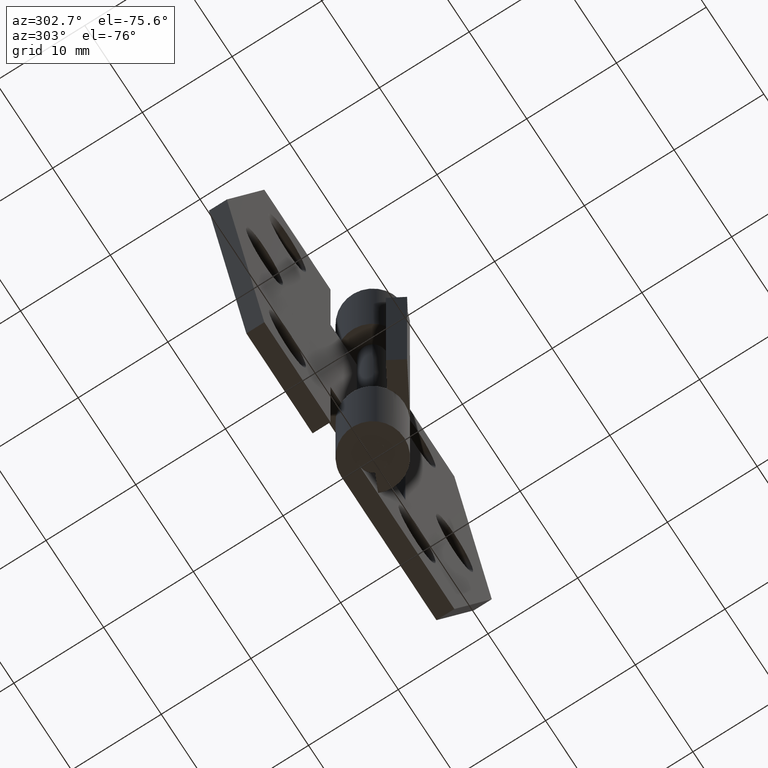
[diagram: clean part render]
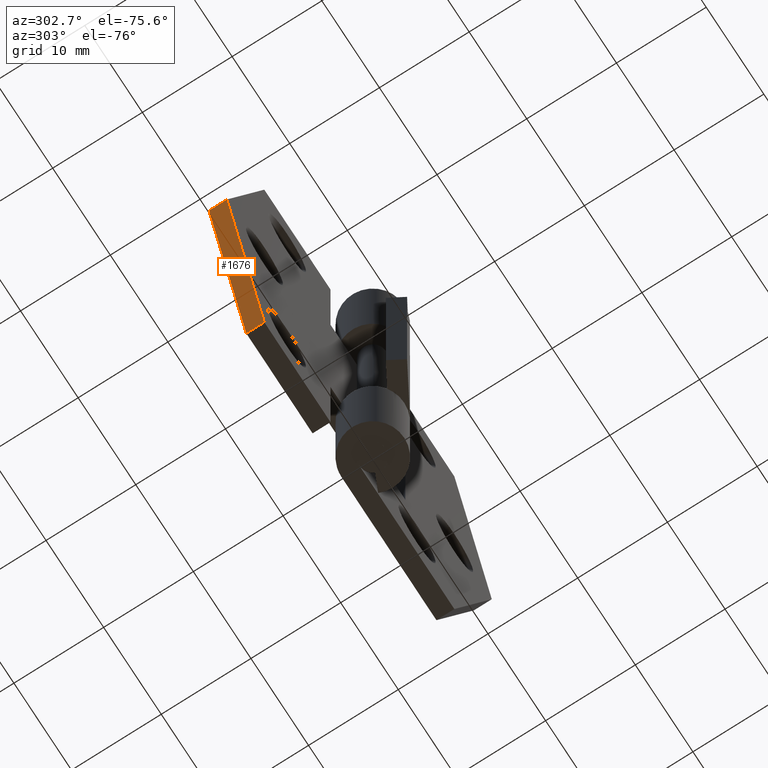
[diagram: same view with one face highlighted and labeled with its STEP entity id]
A machine part, auxiliary view. The second image highlights one B-rep face of the part: STEP entity #1676.
In plain terms, the highlighted face is a freeform B-spline surface patch.
Its self-contained STEP definition (entity closure, byte-faithful):
#1618=CARTESIAN_POINT('',(-16.500000000000000,3.499999999999950,0.0));
#1619=VERTEX_POINT('',#1618);
#1634=CARTESIAN_POINT('',(-16.500000000000000,1.499999999999946,0.0));
#1635=VERTEX_POINT('',#1634);
#1641=CARTESIAN_POINT('',(-16.500000000000000,1.499999999999946,0.0));
#1642=CARTESIAN_POINT('',(-16.500000000000000,3.499999999999950,0.0));
#1643=QUASI_UNIFORM_CURVE('',1,(#1641,#1642),.UNSPECIFIED.,.F.,.U.);
#1644=EDGE_CURVE('',#1635,#1619,#1643,.T.);
#1649=CARTESIAN_POINT('',(-23.324674987401739,1.400100003876334,26.248749951545150));
#1650=CARTESIAN_POINT('',(-16.175324838254689,1.400100003876334,-1.248750622097405));
#1651=CARTESIAN_POINT('',(-23.324674987401739,3.599900049767743,26.248749951545150));
#1652=CARTESIAN_POINT('',(-16.175324838254689,3.599900049767743,-1.248750622097405));
#1653=B_SPLINE_SURFACE_WITH_KNOTS('',1,1,((#1649,#1651),(#1650,#1652)),.UNSPECIFIED.,.F.,.F.,.U.,(2,2),(2,2),(0.0,28.411718451240880),(0.0,2.199800045891410),.UNSPECIFIED.);
#1654=CARTESIAN_POINT('',(-23.0,3.499999999999950,25.0));
#1655=VERTEX_POINT('',#1654);
#1656=CARTESIAN_POINT('',(-23.0,3.499999999999950,25.0));
#1657=CARTESIAN_POINT('',(-16.500000000000000,3.499999999999950,0.0));
#1658=QUASI_UNIFORM_CURVE('',1,(#1656,#1657),.UNSPECIFIED.,.F.,.U.);
#1659=EDGE_CURVE('',#1655,#1619,#1658,.T.);
#1660=ORIENTED_EDGE('',*,*,#1659,.T.);
#1661=ORIENTED_EDGE('',*,*,#1644,.F.);
#1662=CARTESIAN_POINT('',(-23.0,1.499999999999946,25.0));
#1663=VERTEX_POINT('',#1662);
#1664=CARTESIAN_POINT('',(-23.0,1.499999999999946,25.0));
#1665=CARTESIAN_POINT('',(-16.500000000000000,1.499999999999946,0.0));
#1666=QUASI_UNIFORM_CURVE('',1,(#1664,#1665),.UNSPECIFIED.,.F.,.U.);
#1667=EDGE_CURVE('',#1663,#1635,#1666,.T.);
#1668=ORIENTED_EDGE('',*,*,#1667,.F.);
#1669=CARTESIAN_POINT('',(-23.0,1.499999999999946,25.0));
#1670=CARTESIAN_POINT('',(-23.0,3.499999999999950,25.0));
#1671=QUASI_UNIFORM_CURVE('',1,(#1669,#1670),.UNSPECIFIED.,.F.,.U.);
#1672=EDGE_CURVE('',#1663,#1655,#1671,.T.);
#1673=ORIENTED_EDGE('',*,*,#1672,.T.);
#1674=EDGE_LOOP('',(#1660,#1661,#1668,#1673));
#1675=FACE_OUTER_BOUND('',#1674,.T.);
#1676=ADVANCED_FACE('',(#1675),#1653,.F.);